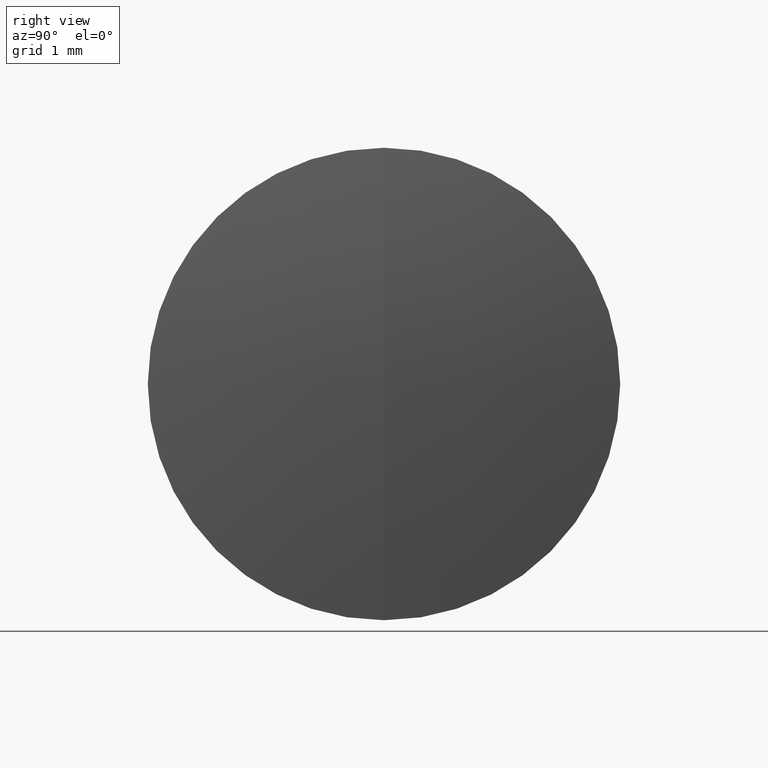
[diagram: clean part render]
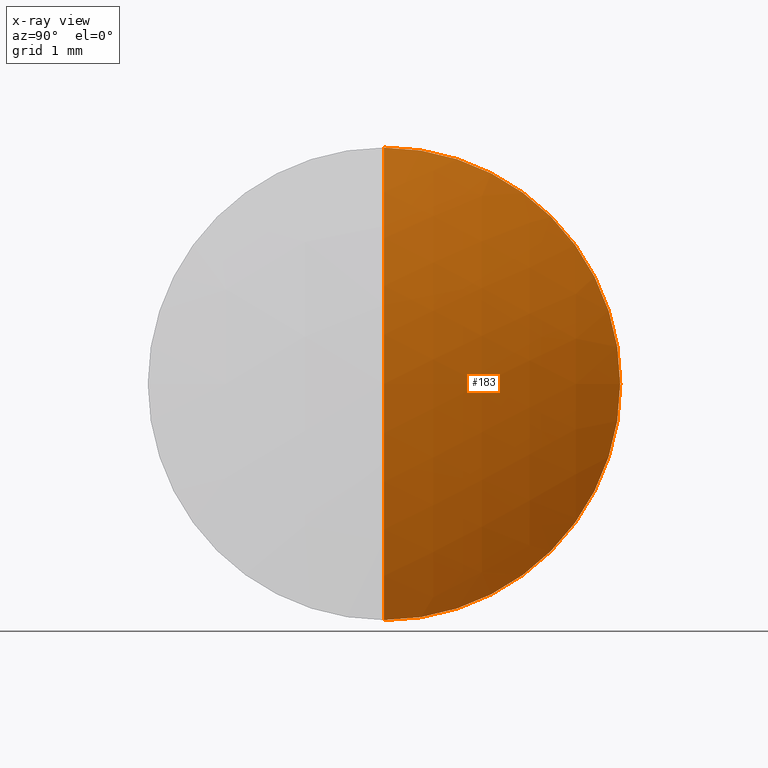
[diagram: x-ray — body ghosted, one internal face saturated and labeled with its STEP entity id]
A machine part, right view, then the same camera in x-ray: the body is ghosted and one INTERNAL B-rep face — a face not visible from any outside direction — is saturated and labeled: STEP entity #183.
In plain terms, the highlighted spherical surface has radius 6.6 mm.
Its self-contained STEP definition (entity closure, byte-faithful):
#31 = AXIS2_PLACEMENT_3D ( 'NONE', #299, #268, #178 ) ;
#56 = DIRECTION ( 'NONE',  ( 0.0000000000000000000, 0.0000000000000000000, 1.000000000000000000 ) ) ;
#65 = DIRECTION ( 'NONE',  ( -0.0000000000000000000, 1.000000000000000000, 1.224646799147353200E-016 ) ) ;
#77 = DIRECTION ( 'NONE',  ( 0.0000000000000000000, -1.000000000000000000, 0.0000000000000000000 ) ) ;
#81 = CARTESIAN_POINT ( 'NONE',  ( 0.7335758746331577700, 0.0000000000000000000, 0.0000000000000000000 ) ) ;
#94 = EDGE_CURVE ( 'NONE', #173, #111, #185, .T. ) ;
#101 = ORIENTED_EDGE ( 'NONE', *, *, #94, .F. ) ;
#111 = VERTEX_POINT ( 'NONE', #192 ) ;
#127 = AXIS2_PLACEMENT_3D ( 'NONE', #81, #251, #56 ) ;
#130 = EDGE_CURVE ( 'NONE', #152, #173, #160, .T. ) ;
#132 = CARTESIAN_POINT ( 'NONE',  ( 1.547439426190206700, 0.0000000000000000000, 3.973571801405921000E-016 ) ) ;
#144 = EDGE_LOOP ( 'NONE', ( #227, #224, #101 ) ) ;
#152 = VERTEX_POINT ( 'NONE', #132 ) ;
#160 = CIRCLE ( 'NONE', #266, 6.599999999999998800 ) ;
#163 = EDGE_CURVE ( 'NONE', #152, #111, #297, .T. ) ;
#173 = VERTEX_POINT ( 'NONE', #264 ) ;
#178 = DIRECTION ( 'NONE',  ( 0.0000000000000000000, 0.0000000000000000000, 1.000000000000000000 ) ) ;
#179 = CARTESIAN_POINT ( 'NONE',  ( -5.052560573809792300, 0.0000000000000000000, -6.776263578034402700E-018 ) ) ;
#183 = ADVANCED_FACE ( 'NONE', ( #209 ), #344, .T. ) ;
#185 = CIRCLE ( 'NONE', #127, 3.175000000000000300 ) ;
#192 = CARTESIAN_POINT ( 'NONE',  ( 0.7335758746331577700, 3.888253587292846600E-016, -3.175000000000000300 ) ) ;
#209 = FACE_OUTER_BOUND ( 'NONE', #144, .T. ) ;
#224 = ORIENTED_EDGE ( 'NONE', *, *, #163, .T. ) ;
#227 = ORIENTED_EDGE ( 'NONE', *, *, #130, .F. ) ;
#246 = DIRECTION ( 'NONE',  ( 0.0000000000000000000, 0.0000000000000000000, -1.000000000000000000 ) ) ;
#251 = DIRECTION ( 'NONE',  ( -1.000000000000000000, -0.0000000000000000000, -0.0000000000000000000 ) ) ;
#264 = CARTESIAN_POINT ( 'NONE',  ( 0.7335758746331577700, 0.0000000000000000000, 3.175000000000000300 ) ) ;
#266 = AXIS2_PLACEMENT_3D ( 'NONE', #280, #77, #246 ) ;
#268 = DIRECTION ( 'NONE',  ( 0.0000000000000000000, 1.000000000000000000, 0.0000000000000000000 ) ) ;
#269 = DIRECTION ( 'NONE',  ( 0.0000000000000000000, -1.224646799147353200E-016, 1.000000000000000000 ) ) ;
#280 = CARTESIAN_POINT ( 'NONE',  ( -5.052560573809792300, 0.0000000000000000000, -6.776263578034402700E-018 ) ) ;
#297 = CIRCLE ( 'NONE', #347, 6.599999999999998800 ) ;
#299 = CARTESIAN_POINT ( 'NONE',  ( -5.052560573809792300, 0.0000000000000000000, -6.776263578034402700E-018 ) ) ;
#344 = SPHERICAL_SURFACE ( 'NONE', #31, 6.599999999999998800 ) ;
#347 = AXIS2_PLACEMENT_3D ( 'NONE', #179, #65, #269 ) ;